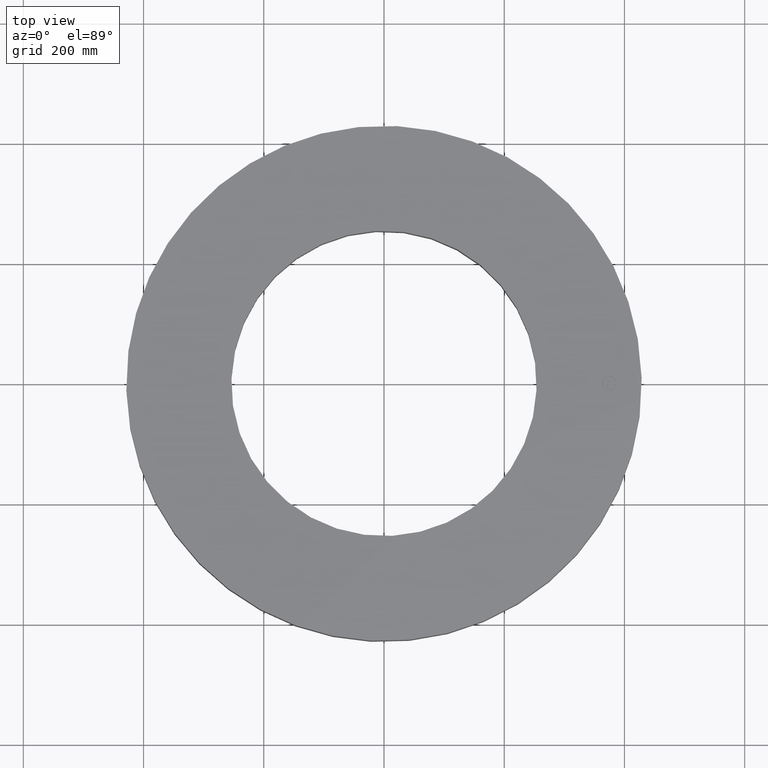
[diagram: clean part render]
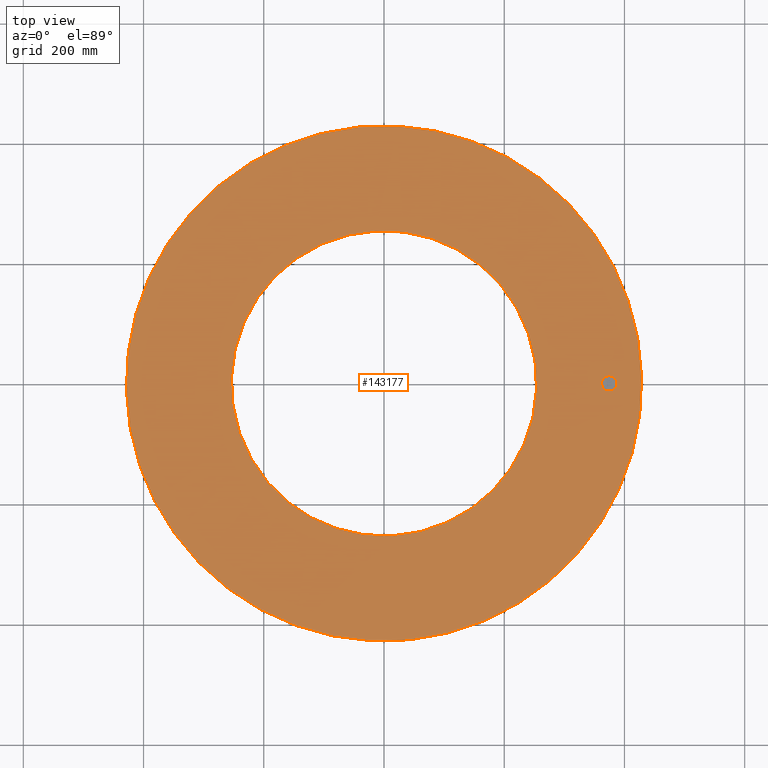
[diagram: same view with one face highlighted and labeled with its STEP entity id]
A machine part, top view. The second image highlights one B-rep face of the part: STEP entity #143177.
In plain terms, the highlighted planar face has unit normal (0, 0, -1).
Its self-contained STEP definition (entity closure, byte-faithful):
#8146=AXIS2_PLACEMENT_3D('Circle Axis2P3D',#8144,#8145,$) ;
#8165=AXIS2_PLACEMENT_3D('Circle Axis2P3D',#8163,#8164,$) ;
#10737=AXIS2_PLACEMENT_3D('Circle Axis2P3D',#10735,#10736,$) ;
#10763=AXIS2_PLACEMENT_3D('Circle Axis2P3D',#10761,#10762,$) ;
#143149=AXIS2_PLACEMENT_3D('Plane Axis2P3D',#143146,#143147,#143148) ;
#143161=AXIS2_PLACEMENT_3D('Circle Axis2P3D',#143159,#143160,$) ;
#143170=AXIS2_PLACEMENT_3D('Circle Axis2P3D',#143168,#143169,$) ;
#8141=CARTESIAN_POINT('Vertex',(-8.09030596398,-14.809205732,4.25000000002)) ;
#8144=CARTESIAN_POINT('Axis2P3D Location',(0.,0.,4.25000000002)) ;
#8148=CARTESIAN_POINT('Vertex',(8.09030596398,14.809205732,4.25000000002)) ;
#8163=CARTESIAN_POINT('Axis2P3D Location',(0.,0.,4.25000000002)) ;
#10735=CARTESIAN_POINT('Axis2P3D Location',(0.,0.,4.25000000002)) ;
#10739=CARTESIAN_POINT('Vertex',(4.79425538606,8.77582561894,4.25000000002)) ;
#10741=CARTESIAN_POINT('Vertex',(-4.79425538606,-8.77582561894,4.25000000002)) ;
#10761=CARTESIAN_POINT('Axis2P3D Location',(0.,0.,4.25000000002)) ;
#143146=CARTESIAN_POINT('Axis2P3D Location',(0.,10.,4.25000000002)) ;
#143159=CARTESIAN_POINT('Axis2P3D Location',(14.7500000001,0.,4.25000000002)) ;
#143163=CARTESIAN_POINT('Vertex',(14.7500000001,-0.499999995002,4.25000000002)) ;
#143165=CARTESIAN_POINT('Vertex',(14.7500000001,0.499999995002,4.25000000002)) ;
#143168=CARTESIAN_POINT('Axis2P3D Location',(14.7500000001,0.,4.25000000002)) ;
#8145=DIRECTION('Axis2P3D Direction',(0.,0.,-0.0393700787402)) ;
#8164=DIRECTION('Axis2P3D Direction',(0.,0.,-0.0393700787402)) ;
#10736=DIRECTION('Axis2P3D Direction',(0.,0.,-0.0393700787402)) ;
#10762=DIRECTION('Axis2P3D Direction',(0.,0.,-0.0393700787402)) ;
#143147=DIRECTION('Axis2P3D Direction',(0.,0.,-0.0393700787402)) ;
#143148=DIRECTION('Axis2P3D XDirection',(0.0393700787402,0.,0.)) ;
#143160=DIRECTION('Axis2P3D Direction',(0.,0.,-0.0393700787402)) ;
#143169=DIRECTION('Axis2P3D Direction',(0.,0.,-0.0393700787402)) ;
#143152=ORIENTED_EDGE('',*,*,#8167,.F.) ;
#143153=ORIENTED_EDGE('',*,*,#8150,.F.) ;
#143156=ORIENTED_EDGE('',*,*,#10765,.T.) ;
#143157=ORIENTED_EDGE('',*,*,#10743,.T.) ;
#143174=ORIENTED_EDGE('',*,*,#143167,.F.) ;
#143175=ORIENTED_EDGE('',*,*,#143172,.F.) ;
#143158=FACE_BOUND('',#143155,.T.) ;
#143176=FACE_BOUND('',#143173,.T.) ;
#143177=ADVANCED_FACE('PartBody',(#143154,#143158,#143176),#143150,.F.) ;
#8147=CIRCLE('generated circle',#8146,16.8750000001) ;
#8166=CIRCLE('generated circle',#8165,16.8750000001) ;
#10738=CIRCLE('generated circle',#10737,10.) ;
#10764=CIRCLE('generated circle',#10763,10.) ;
#143162=CIRCLE('generated circle',#143161,0.499999995002) ;
#143171=CIRCLE('generated circle',#143170,0.499999995002) ;
#8150=EDGE_CURVE('',#8142,#8149,#8147,.T.) ;
#8167=EDGE_CURVE('',#8149,#8142,#8166,.T.) ;
#10743=EDGE_CURVE('',#10740,#10742,#10738,.T.) ;
#10765=EDGE_CURVE('',#10742,#10740,#10764,.T.) ;
#143167=EDGE_CURVE('',#143164,#143166,#143162,.F.) ;
#143172=EDGE_CURVE('',#143166,#143164,#143171,.F.) ;
#143151=EDGE_LOOP('',(#143152,#143153)) ;
#143155=EDGE_LOOP('',(#143156,#143157)) ;
#143173=EDGE_LOOP('',(#143174,#143175)) ;
#143154=FACE_OUTER_BOUND('',#143151,.T.) ;
#143150=PLANE('',#143149) ;
#8142=VERTEX_POINT('',#8141) ;
#8149=VERTEX_POINT('',#8148) ;
#10740=VERTEX_POINT('',#10739) ;
#10742=VERTEX_POINT('',#10741) ;
#143164=VERTEX_POINT('',#143163) ;
#143166=VERTEX_POINT('',#143165) ;